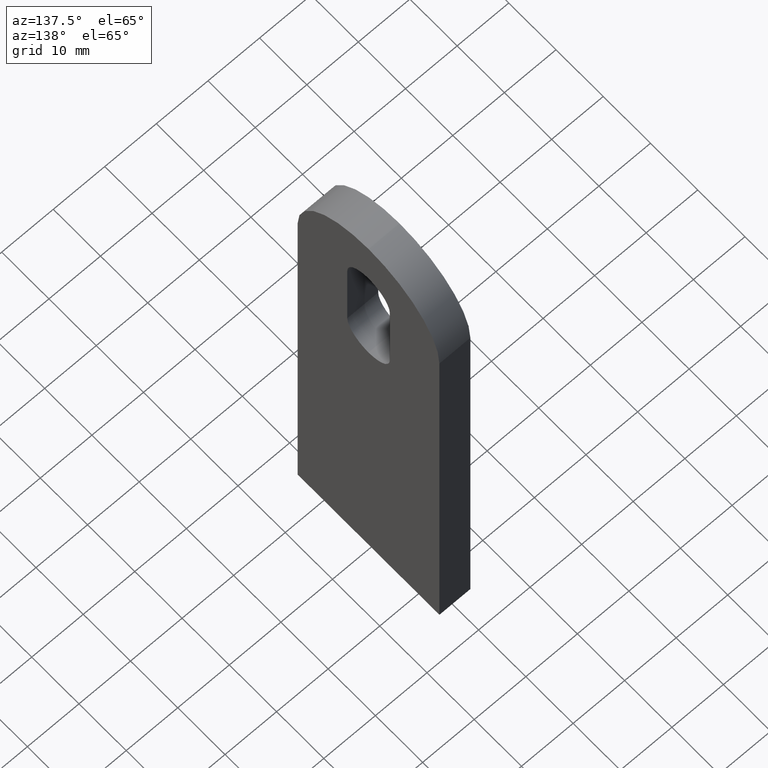
[diagram: clean part render]
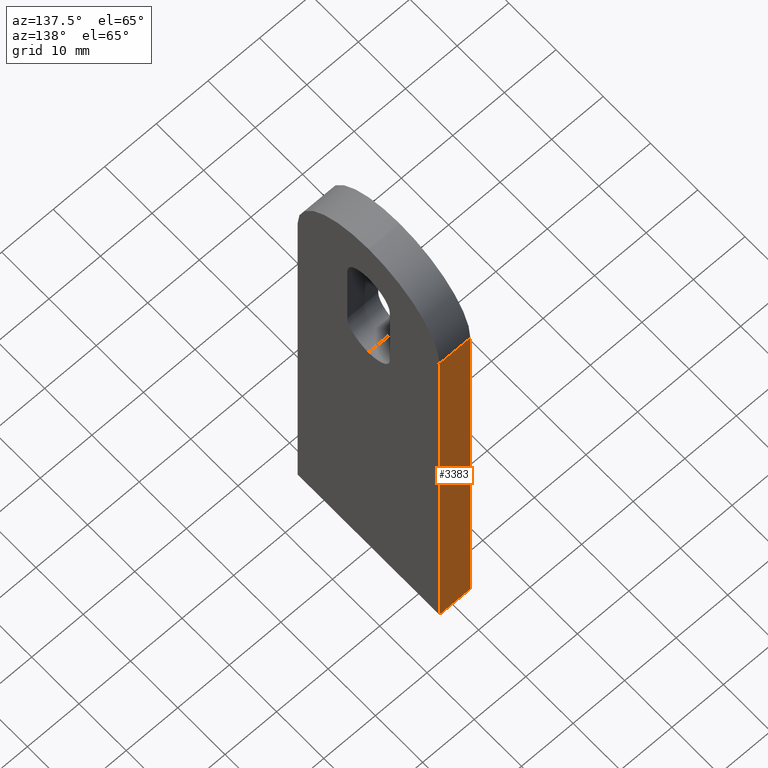
[diagram: same view with one face highlighted and labeled with its STEP entity id]
A machine part, auxiliary view. The second image highlights one B-rep face of the part: STEP entity #3383.
In plain terms, the highlighted planar face has unit normal (0, 1, -0).
Its self-contained STEP definition (entity closure, byte-faithful):
#719 = LINE ( 'NONE', #5669, #2754 ) ;
#778 = DIRECTION ( 'NONE',  ( -1.000000000000000000, -0.0000000000000000000, -0.0000000000000000000 ) ) ;
#868 = CARTESIAN_POINT ( 'NONE',  ( -3.000000000000000000, 15.00000000000000000, -3.061616997868383000E-015 ) ) ;
#1507 = LINE ( 'NONE', #8760, #8313 ) ;
#1553 = VERTEX_POINT ( 'NONE', #6119 ) ;
#2031 = VERTEX_POINT ( 'NONE', #6054 ) ;
#2134 = VERTEX_POINT ( 'NONE', #2156 ) ;
#2156 = CARTESIAN_POINT ( 'NONE',  ( -3.000000000000000000, 15.00000000000000200, 84.99999999999998600 ) ) ;
#2217 = CARTESIAN_POINT ( 'NONE',  ( 3.000000000000000000, 15.00000000000000000, -3.061616997868383000E-015 ) ) ;
#2258 = EDGE_CURVE ( 'NONE', #1553, #2134, #1507, .T. ) ;
#2296 = ORIENTED_EDGE ( 'NONE', *, *, #2258, .F. ) ;
#2754 = VECTOR ( 'NONE', #9566, 1000.000000000000000 ) ;
#2877 = PLANE ( 'NONE',  #4291 ) ;
#2941 = VECTOR ( 'NONE', #7611, 1000.000000000000000 ) ;
#3383 = ADVANCED_FACE ( 'NONE', ( #7030 ), #2877, .T. ) ;
#4008 = LINE ( 'NONE', #2217, #5033 ) ;
#4129 = EDGE_CURVE ( 'NONE', #1553, #2031, #719, .T. ) ;
#4291 = AXIS2_PLACEMENT_3D ( 'NONE', #5289, #7657, #7691 ) ;
#4465 = CARTESIAN_POINT ( 'NONE',  ( -3.000000000000000000, 15.00000000000000200, 84.99999999999998600 ) ) ;
#4527 = EDGE_CURVE ( 'NONE', #2031, #7948, #4008, .T. ) ;
#5033 = VECTOR ( 'NONE', #10263, 1000.000000000000000 ) ;
#5112 = ORIENTED_EDGE ( 'NONE', *, *, #4129, .T. ) ;
#5238 = LINE ( 'NONE', #4465, #2941 ) ;
#5289 = CARTESIAN_POINT ( 'NONE',  ( 3.000000000000000000, 15.00000000000000200, 84.99999999999998600 ) ) ;
#5669 = CARTESIAN_POINT ( 'NONE',  ( 3.000000000000000000, 15.00000000000000200, 84.99999999999998600 ) ) ;
#6044 = ORIENTED_EDGE ( 'NONE', *, *, #10111, .F. ) ;
#6054 = CARTESIAN_POINT ( 'NONE',  ( 3.000000000000000000, 15.00000000000000000, -3.061616997868383000E-015 ) ) ;
#6081 = ORIENTED_EDGE ( 'NONE', *, *, #4527, .T. ) ;
#6119 = CARTESIAN_POINT ( 'NONE',  ( 3.000000000000000000, 15.00000000000000200, 84.99999999999998600 ) ) ;
#7030 = FACE_OUTER_BOUND ( 'NONE', #7137, .T. ) ;
#7137 = EDGE_LOOP ( 'NONE', ( #6044, #2296, #5112, #6081 ) ) ;
#7611 = DIRECTION ( 'NONE',  ( 0.0000000000000000000, -2.040851148208008500E-017, -1.000000000000000000 ) ) ;
#7657 = DIRECTION ( 'NONE',  ( 0.0000000000000000000, 1.000000000000000000, -2.040851148208008500E-017 ) ) ;
#7691 = DIRECTION ( 'NONE',  ( 0.0000000000000000000, 2.040851148208008500E-017, 1.000000000000000000 ) ) ;
#7948 = VERTEX_POINT ( 'NONE', #868 ) ;
#8313 = VECTOR ( 'NONE', #778, 1000.000000000000000 ) ;
#8760 = CARTESIAN_POINT ( 'NONE',  ( 3.000000000000000000, 15.00000000000000200, 84.99999999999998600 ) ) ;
#9566 = DIRECTION ( 'NONE',  ( 0.0000000000000000000, -2.040851148208008500E-017, -1.000000000000000000 ) ) ;
#10111 = EDGE_CURVE ( 'NONE', #2134, #7948, #5238, .T. ) ;
#10263 = DIRECTION ( 'NONE',  ( -1.000000000000000000, -0.0000000000000000000, -0.0000000000000000000 ) ) ;